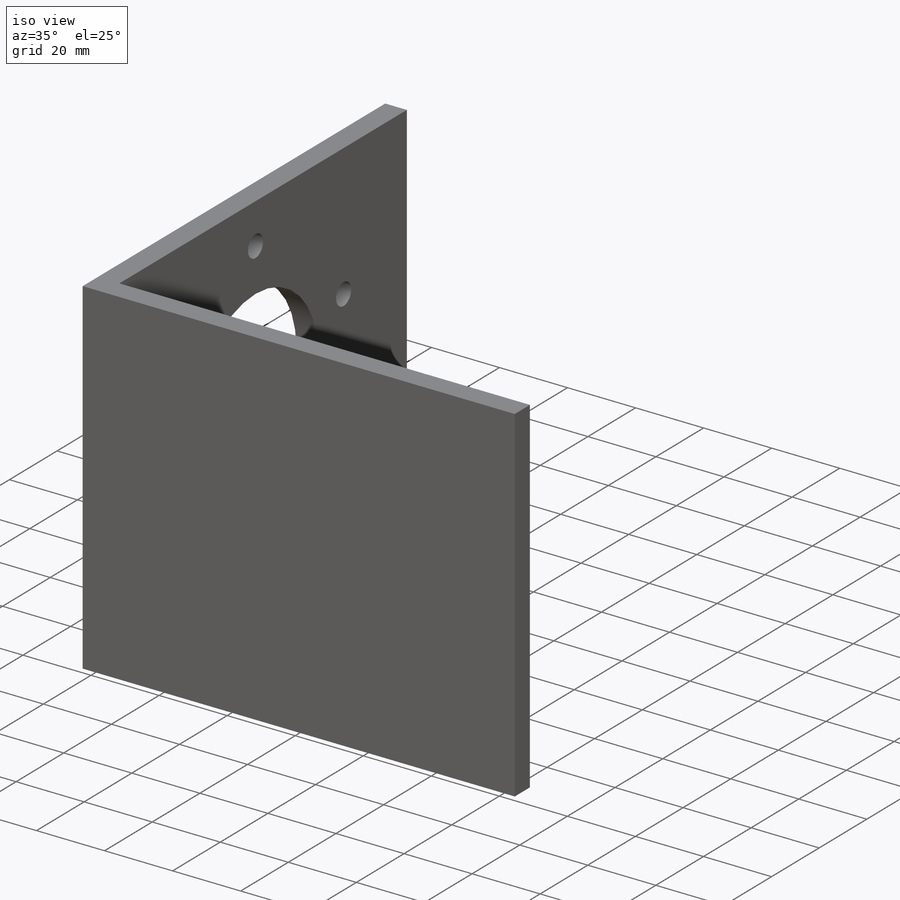
[diagram: iso view]
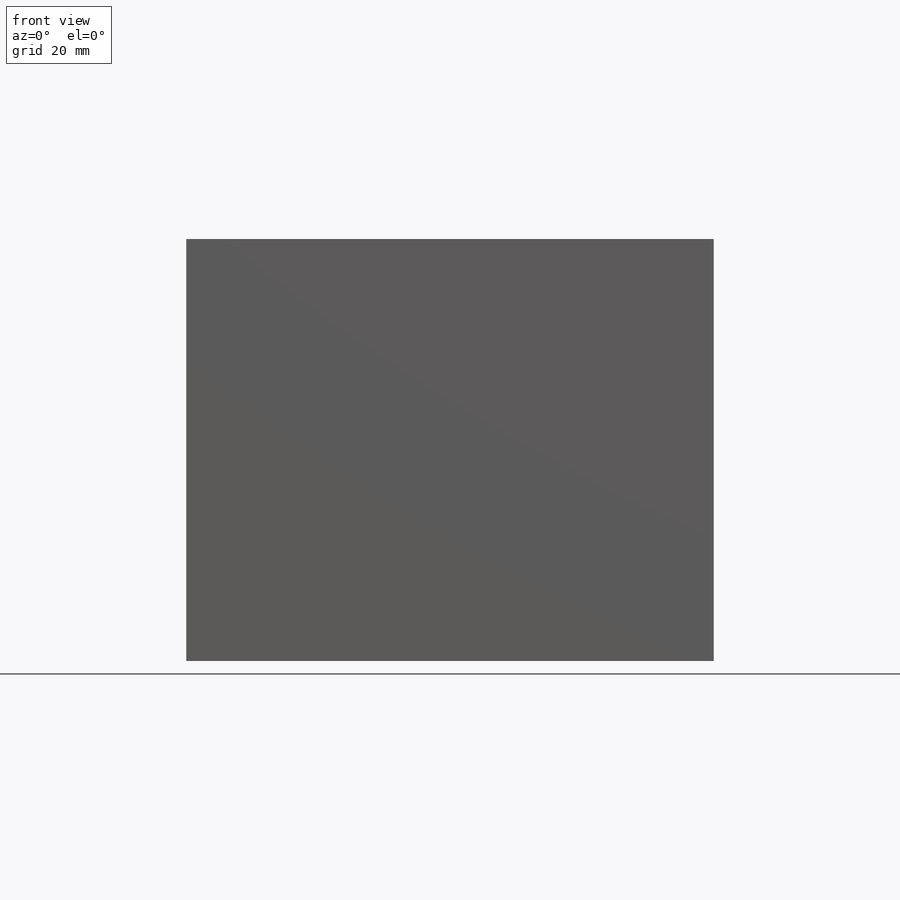
[diagram: front view]
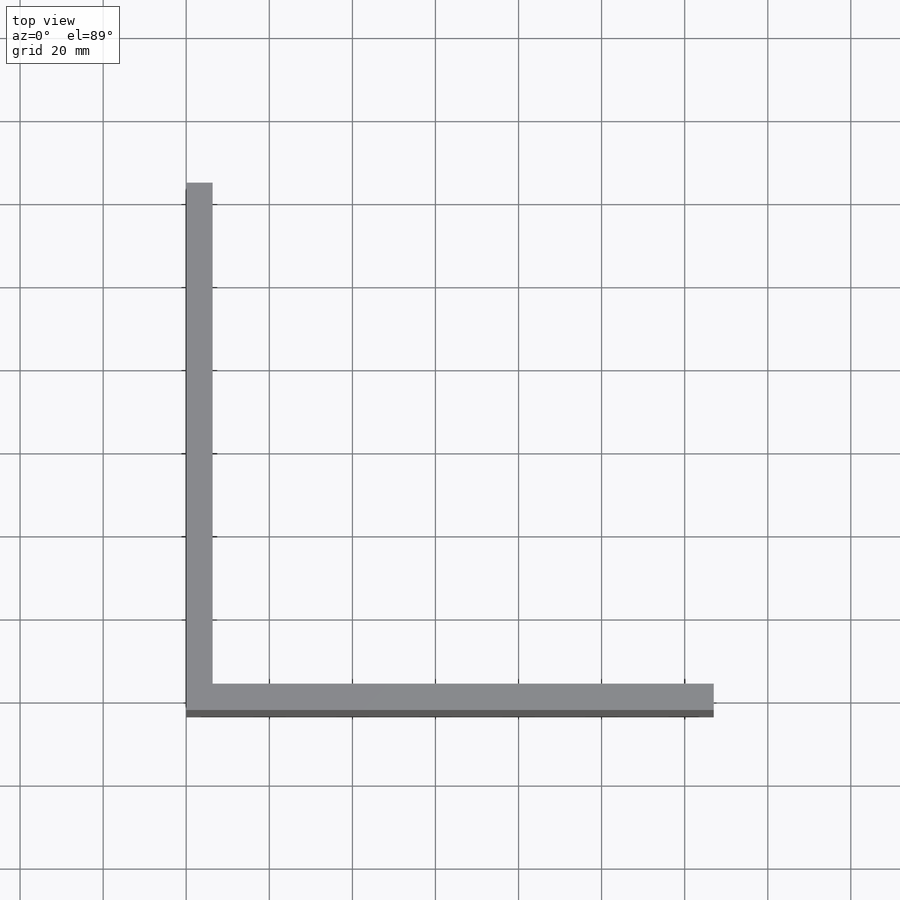
[diagram: top view]
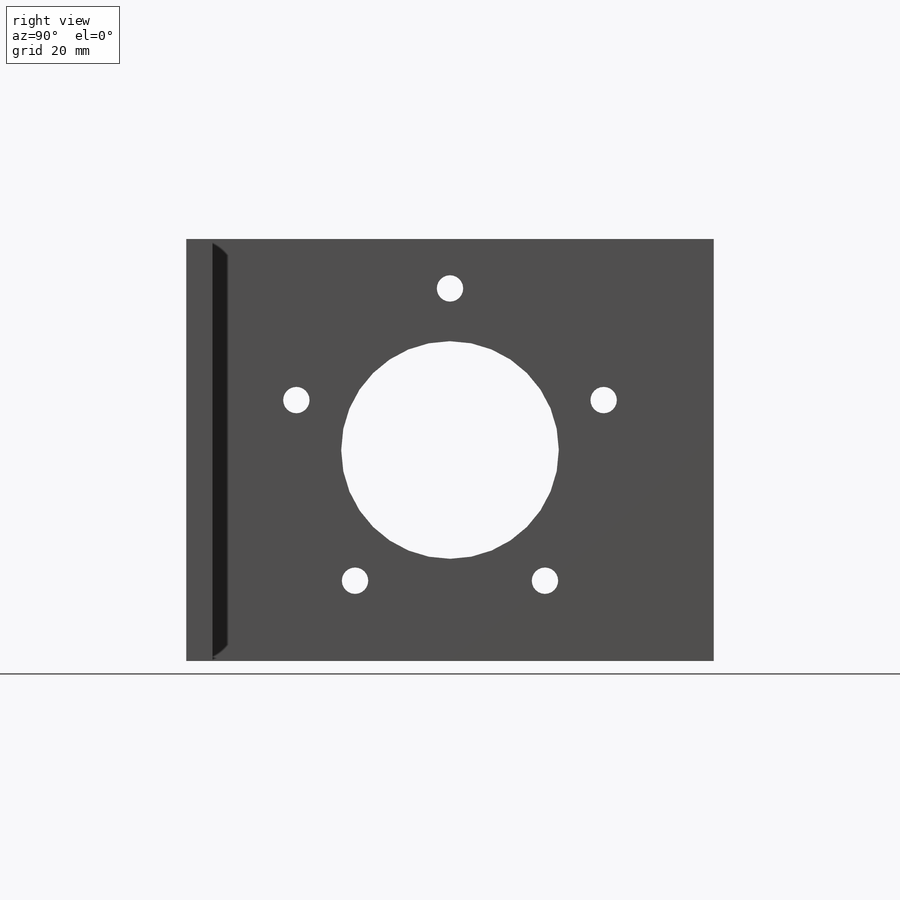
[diagram: right view]
SOLIDWORKS PART (.sldprt)
format: sldprt  version: not decoded by parser v0  size: 173,056 bytes
history: native  units: mm
features: sketch x3, cut_extrude x2, material x1, extrude x1, pattern_circular x1 (+16 scaffold rows collapsed)
feature tree (24):
  scaffold x16  (default folders/planes/origin — collapsed)
  material  "Material <not specified>"
  sketch  "Sketch1"  dims[D1=127.0mm D2=127.0mm D3=6.35mm]
  extrude  "Boss-Extrude1"  Depth=101.6mm
  sketch  "Sketch2"  dims[D1=76.2mm D2=52.3875mm]
  cut_extrude  "Cut-Extrude1"  [1 undecoded]
  sketch  "Sketch3"  dims[D2=6.35mm D1=12.7mm]
  cut_extrude  "Cut-Extrude2"  [1 undecoded]
  pattern_circular  "CirPattern1"  Count=5 Angle=360deg
decode coverage: 5 of 7 modeling features carry decoded parameters
note: 2 parameter values undecoded
note: suppression state not decoded; provenance and decode notes live in map.json
